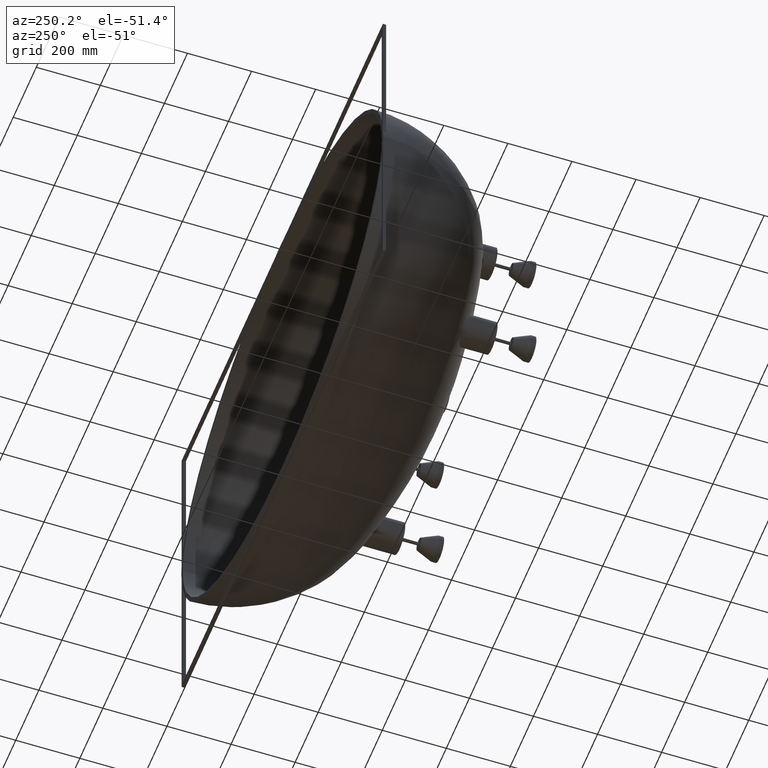
[diagram: clean part render]
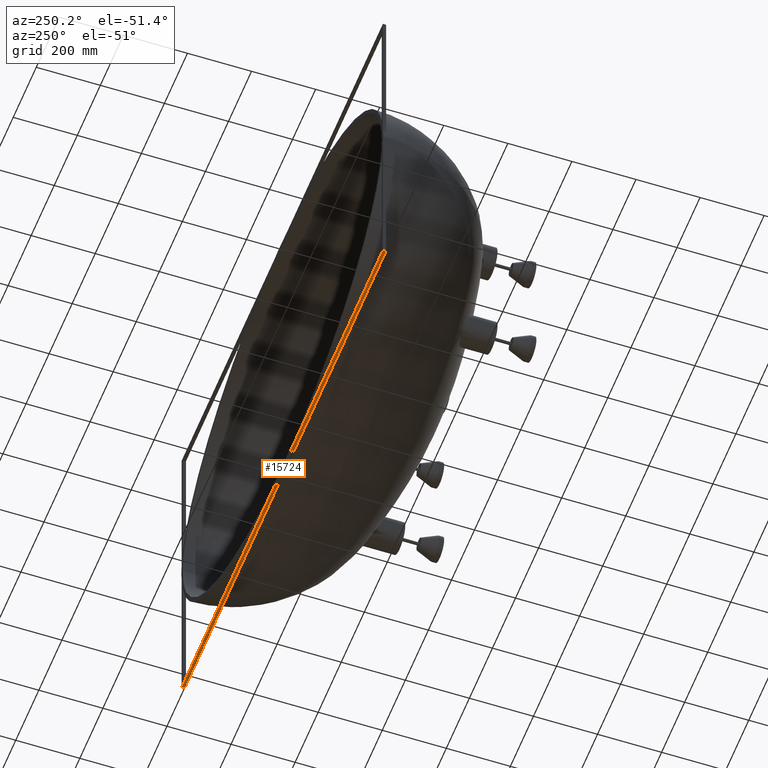
[diagram: same view with one face highlighted and labeled with its STEP entity id]
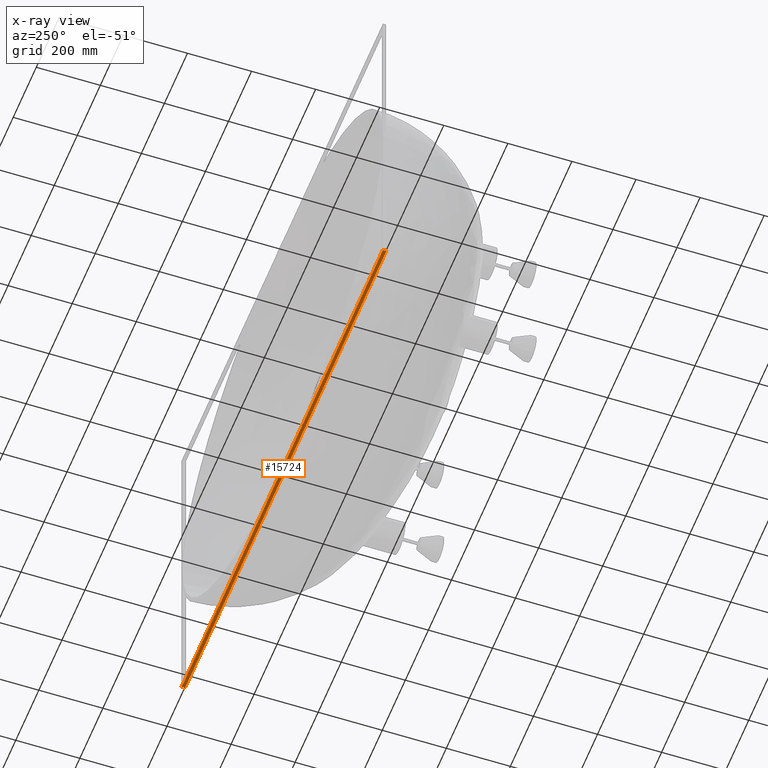
[diagram: x-ray of the same camera — body ghosted, the highlighted face saturated]
A machine part, auxiliary view. The second image highlights one B-rep face of the part: STEP entity #15724.
The next image is the same camera in x-ray: the body ghosted, the highlighted face saturated — about 0% of this face is hidden behind the body in this view.
In plain terms, the highlighted planar face has unit normal (0, 0, -1).
Its self-contained STEP definition (entity closure, byte-faithful):
#516 = VECTOR ( 'NONE', #13306, 1000.000000000000000 ) ;
#730 = CARTESIAN_POINT ( 'NONE',  ( -872.5000000000001100, -9.999999999999657200, -532.4999999999994300 ) ) ;
#1195 = CARTESIAN_POINT ( 'NONE',  ( -872.5000000000001100, -9.999999999999657200, -532.4999999999994300 ) ) ;
#1315 = EDGE_CURVE ( 'NONE', #6338, #5064, #11621, .T. ) ;
#3254 = DIRECTION ( 'NONE',  ( -1.000000000000000000, 0.0000000000000000000, -6.362309596705767800E-017 ) ) ;
#5064 = VERTEX_POINT ( 'NONE', #7307 ) ;
#5333 = VERTEX_POINT ( 'NONE', #19004 ) ;
#5551 = ORIENTED_EDGE ( 'NONE', *, *, #9042, .F. ) ;
#5859 = VECTOR ( 'NONE', #18519, 1000.000000000000000 ) ;
#5937 = LINE ( 'NONE', #14959, #516 ) ;
#6160 = CARTESIAN_POINT ( 'NONE',  ( 872.5000000000000000, -10.00000000000034300, -532.4999999999993200 ) ) ;
#6338 = VERTEX_POINT ( 'NONE', #6160 ) ;
#7307 = CARTESIAN_POINT ( 'NONE',  ( -872.5000000000001100, -9.999999999999657200, -532.4999999999994300 ) ) ;
#7485 = LINE ( 'NONE', #13179, #21264 ) ;
#8197 = ORIENTED_EDGE ( 'NONE', *, *, #12828, .T. ) ;
#9042 = EDGE_CURVE ( 'NONE', #19133, #5333, #7485, .T. ) ;
#9843 = PLANE ( 'NONE',  #11728 ) ;
#10845 = EDGE_LOOP ( 'NONE', ( #5551, #13138, #17880, #8197 ) ) ;
#11524 = CARTESIAN_POINT ( 'NONE',  ( -872.5000000000001100, -9.999999999999657200, -532.4999999999994300 ) ) ;
#11621 = LINE ( 'NONE', #730, #21058 ) ;
#11722 = DIRECTION ( 'NONE',  ( -1.000000000000000000, 3.941620205769786900E-016, -6.362309596705767800E-017 ) ) ;
#11728 = AXIS2_PLACEMENT_3D ( 'NONE', #11524, #13234, #3254 ) ;
#12374 = LINE ( 'NONE', #1195, #5859 ) ;
#12828 = EDGE_CURVE ( 'NONE', #5064, #5333, #12374, .T. ) ;
#13138 = ORIENTED_EDGE ( 'NONE', *, *, #16205, .F. ) ;
#13179 = CARTESIAN_POINT ( 'NONE',  ( -872.5000000000001100, 3.439063629538841300E-013, -532.4999999999994300 ) ) ;
#13234 = DIRECTION ( 'NONE',  ( 6.362309596705767800E-017, 8.827716524758878600E-028, -1.000000000000000000 ) ) ;
#13306 = DIRECTION ( 'NONE',  ( 3.941620205769787400E-016, 1.000000000000000000, 8.827967302839494800E-028 ) ) ;
#14959 = CARTESIAN_POINT ( 'NONE',  ( 872.5000000000000000, -10.00000000000034300, -532.4999999999993200 ) ) ;
#15724 = ADVANCED_FACE ( 'NONE', ( #16901 ), #9843, .T. ) ;
#16205 = EDGE_CURVE ( 'NONE', #6338, #19133, #5937, .T. ) ;
#16901 = FACE_OUTER_BOUND ( 'NONE', #10845, .T. ) ;
#17627 = DIRECTION ( 'NONE',  ( -1.000000000000000000, 3.941620205769786900E-016, -6.362309596705767800E-017 ) ) ;
#17880 = ORIENTED_EDGE ( 'NONE', *, *, #1315, .T. ) ;
#18519 = DIRECTION ( 'NONE',  ( 3.941620205769787400E-016, 1.000000000000000000, 8.827967302839494800E-028 ) ) ;
#19004 = CARTESIAN_POINT ( 'NONE',  ( -872.5000000000001100, 3.439063629538841300E-013, -532.4999999999994300 ) ) ;
#19053 = CARTESIAN_POINT ( 'NONE',  ( 872.5000000000000000, -3.439063629529438500E-013, -532.4999999999993200 ) ) ;
#19133 = VERTEX_POINT ( 'NONE', #19053 ) ;
#21058 = VECTOR ( 'NONE', #11722, 1000.000000000000000 ) ;
#21264 = VECTOR ( 'NONE', #17627, 1000.000000000000000 ) ;